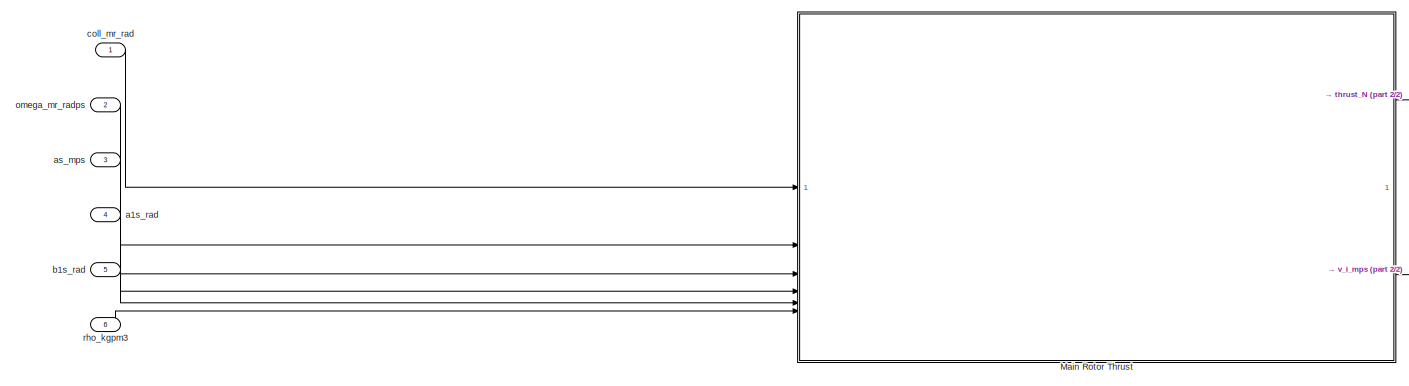
[diagram: root canvas - part 1/2, most of the canvas]
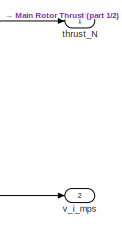
[diagram: root canvas - part 2/2, middle right region]
MODEL slx_edb5a6849d61
KIND library
CONFIG AbsTol = auto
CONFIG EnableMultiTasking = off
CONFIG FixedStep = auto
CONFIG MaxStep = auto
CONFIG MinStep = auto
CONFIG RelTol = 1e-3
CONFIG SampleTimeConstraint = Unconstrained
CONFIG SolverName = VariableStepAuto
CONFIG StartTime = 0.0
CONFIG StopTime = 10.0
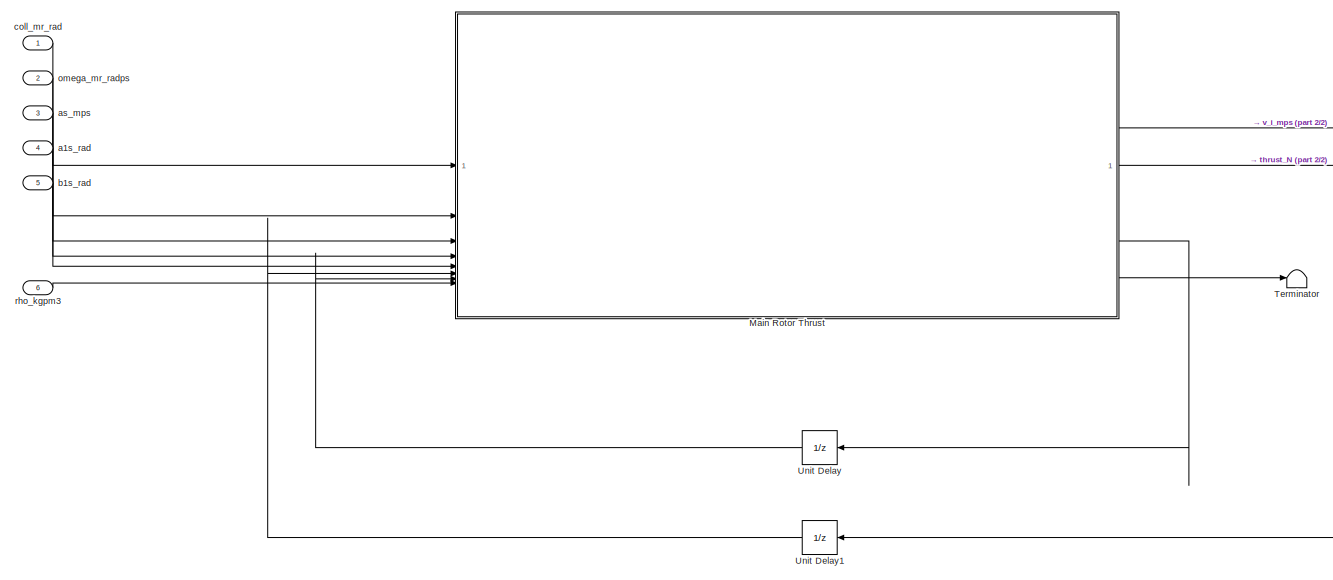
[diagram: Main Rotor Thrust - part 1/2, center side, full height]
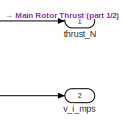
[diagram: Main Rotor Thrust - part 2/2, top right region]
BLOCK [SubSystem] Main Rotor Thrust
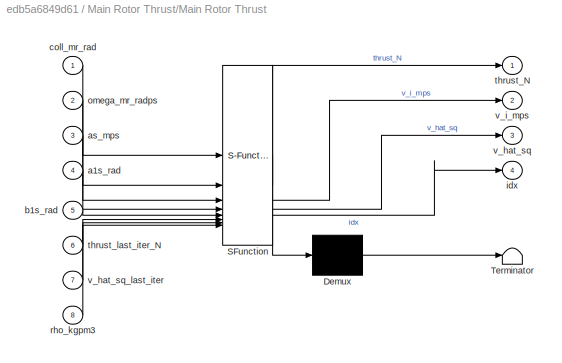
BLOCK [SubSystem] Main Rotor Thrust/Main Rotor Thrust
  ErrorFcn = Stateflow.Translate.translate
  LibrarySourceBlock = simulink/User-Defined\nFunctions/MATLAB Function
  PermitHierarchicalResolution = ExplicitOnly
  SFBlockType = MATLAB Function
  TreatAsAtomicUnit = on
BLOCK [Demux] Main Rotor Thrust/Main Rotor Thrust/ Demux 
  Outputs = 1
BLOCK [S-Function] Main Rotor Thrust/Main Rotor Thrust/ SFunction 
  EnableBusSupport = off
  FunctionName = sf_sfun
  Parameters = params
  PortCounts = [8 5]
  SFcnIsStateOwnerBlock = off
  SFunctionDeploymentMode = off
  Tag = Stateflow S-Function 2
BLOCK [Terminator] Main Rotor Thrust/Main Rotor Thrust/ Terminator 
BLOCK [Inport] Main Rotor Thrust/Main Rotor Thrust/a1s_rad
  Port = 4
BLOCK [Inport] Main Rotor Thrust/Main Rotor Thrust/as_mps
  Port = 3
BLOCK [Inport] Main Rotor Thrust/Main Rotor Thrust/b1s_rad
  Port = 5
BLOCK [Inport] Main Rotor Thrust/Main Rotor Thrust/coll_mr_rad
BLOCK [Outport] Main Rotor Thrust/Main Rotor Thrust/idx
  Port = 4
BLOCK [Inport] Main Rotor Thrust/Main Rotor Thrust/omega_mr_radps
  Port = 2
BLOCK [Inport] Main Rotor Thrust/Main Rotor Thrust/rho_kgpm3
  Port = 8
BLOCK [Outport] Main Rotor Thrust/Main Rotor Thrust/thrust_N
BLOCK [Inport] Main Rotor Thrust/Main Rotor Thrust/thrust_last_iter_N
  Port = 6
BLOCK [Outport] Main Rotor Thrust/Main Rotor Thrust/v_hat_sq
  Port = 3
BLOCK [Inport] Main Rotor Thrust/Main Rotor Thrust/v_hat_sq_last_iter
  Port = 7
BLOCK [Outport] Main Rotor Thrust/Main Rotor Thrust/v_i_mps
  Port = 2
BLOCK [Terminator] Main Rotor Thrust/Terminator
BLOCK [UnitDelay] Main Rotor Thrust/Unit Delay
  HasFrameUpgradeWarning = on
  InitialCondition = -1
  NameLocation = top
  SampleTime = plant_sample_time_s
BLOCK [UnitDelay] Main Rotor Thrust/Unit Delay1
  HasFrameUpgradeWarning = on
  InitialCondition = -1
  NameLocation = top
  SampleTime = plant_sample_time_s
BLOCK [Inport] Main Rotor Thrust/a1s_rad
  Port = 4
BLOCK [Inport] Main Rotor Thrust/as_mps
  Port = 3
BLOCK [Inport] Main Rotor Thrust/b1s_rad
  Port = 5
BLOCK [Inport] Main Rotor Thrust/coll_mr_rad
BLOCK [Inport] Main Rotor Thrust/omega_mr_radps
  Port = 2
BLOCK [Inport] Main Rotor Thrust/rho_kgpm3
  Port = 6
BLOCK [Outport] Main Rotor Thrust/thrust_N
BLOCK [Outport] Main Rotor Thrust/v_i_mps
  OutDataTypeStr = double
  Port = 2
  PortDimensions = 1
  Unit = m/s
BLOCK [Inport] a1s_rad
  OutDataTypeStr = double
  Port = 4
  PortDimensions = 1
  Unit = rad
BLOCK [Inport] as_mps
  OutDataTypeStr = double
  Port = 3
  PortDimensions = [3, 1]
  Unit = m/s
BLOCK [Inport] b1s_rad
  OutDataTypeStr = double
  Port = 5
  PortDimensions = 1
  Unit = rad
BLOCK [Inport] coll_mr_rad
  OutDataTypeStr = double
  PortDimensions = 1
  Unit = rad
BLOCK [Inport] omega_mr_radps
  OutDataTypeStr = double
  Port = 2
  PortDimensions = 1
  Unit = rad/s
BLOCK [Inport] rho_kgpm3
  OutDataTypeStr = double
  Port = 6
  PortDimensions = 1
  Unit = kg/m^3
BLOCK [Outport] thrust_N
  OutDataTypeStr = double
  PortDimensions = N
  Unit = 1
BLOCK [Outport] v_i_mps
  OutDataTypeStr = double
  Port = 2
  PortDimensions = 1
  Unit = m/s
NET Main Rotor Thrust/Main Rotor Thrust:1 -> Main Rotor Thrust/Unit Delay1:1, Main Rotor Thrust/thrust_N:1
LINE Main Rotor Thrust/Main Rotor Thrust:2 -> Main Rotor Thrust/v_i_mps:1
LINE Main Rotor Thrust/Main Rotor Thrust:3 -> Main Rotor Thrust/Unit Delay:1
LINE Main Rotor Thrust/Main Rotor Thrust:4 -> Main Rotor Thrust/Terminator:1
LINE Main Rotor Thrust/Unit Delay1:1 -> Main Rotor Thrust/Main Rotor Thrust:6
LINE Main Rotor Thrust/Unit Delay:1 -> Main Rotor Thrust/Main Rotor Thrust:7
LINE Main Rotor Thrust/a1s_rad:1 -> Main Rotor Thrust/Main Rotor Thrust:4
LINE Main Rotor Thrust/as_mps:1 -> Main Rotor Thrust/Main Rotor Thrust:3
LINE Main Rotor Thrust/b1s_rad:1 -> Main Rotor Thrust/Main Rotor Thrust:5
LINE Main Rotor Thrust/coll_mr_rad:1 -> Main Rotor Thrust/Main Rotor Thrust:1
LINE Main Rotor Thrust/omega_mr_radps:1 -> Main Rotor Thrust/Main Rotor Thrust:2
LINE Main Rotor Thrust/rho_kgpm3:1 -> Main Rotor Thrust/Main Rotor Thrust:8
LINE Main Rotor Thrust:1 -> thrust_N:1
LINE Main Rotor Thrust:2 -> v_i_mps:1
LINE a1s_rad:1 -> Main Rotor Thrust:4
LINE as_mps:1 -> Main Rotor Thrust:3
LINE b1s_rad:1 -> Main Rotor Thrust:5
LINE coll_mr_rad:1 -> Main Rotor Thrust:1
LINE omega_mr_radps:1 -> Main Rotor Thrust:2
LINE rho_kgpm3:1 -> Main Rotor Thrust:6
note: NET lines group one-source signal fan-out (src -> all destinations, sorted); 1:1 wires keep LINE
CHART Main Rotor Thrust/Main Rotor Thrust states=1 transitions=1
  STATE_LABEL 'eML_blk_kernel()'
  STATE_LABEL 'SCRIPT:\nfunction [thrust_N, v_i_mps, v_hat_sq, idx] = thrust_dynamics(coll_mr_rad, omega_mr_radps, as_mps, ...\n                            a1s_rad, b1s_rad, thrust_last_iter_N, v_hat_sq_last_iter, rho_kgpm3, params)\n%THRUST_DYNAMICS_FUNCTION Computes main rotor thrust based on classical\n%momentum theory\n%\n%Inputs:\n%coll_mr_rad                    : Collective command\n%omega_mr_radps                ...<+1091ch>'
CHART  states=0 transitions=0
